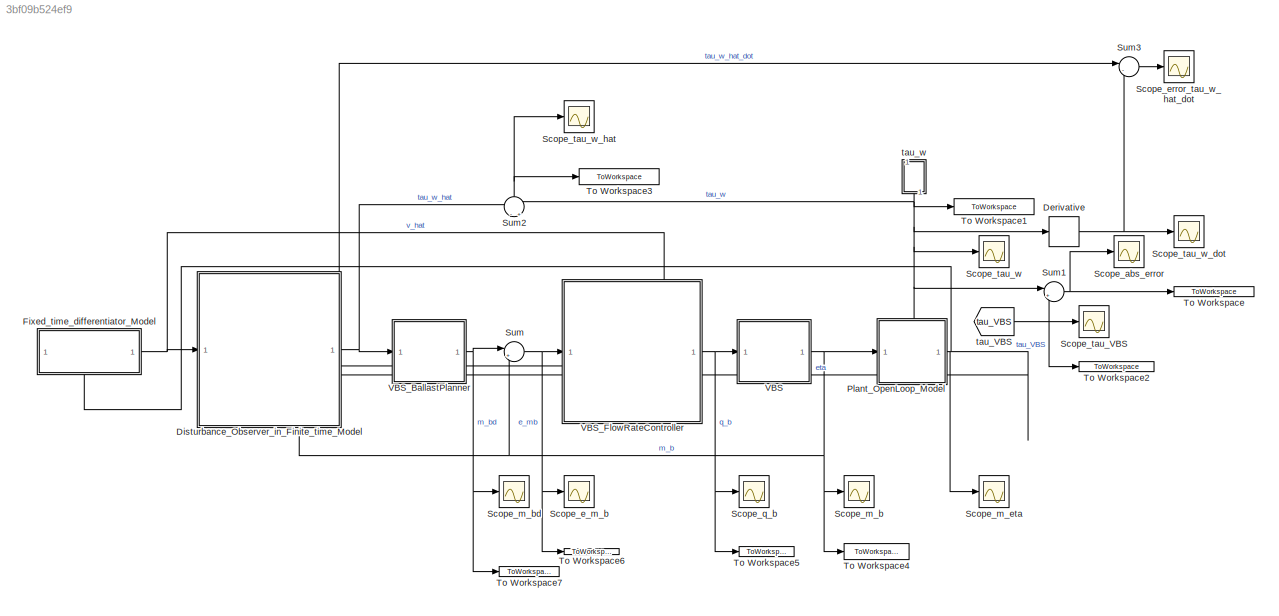
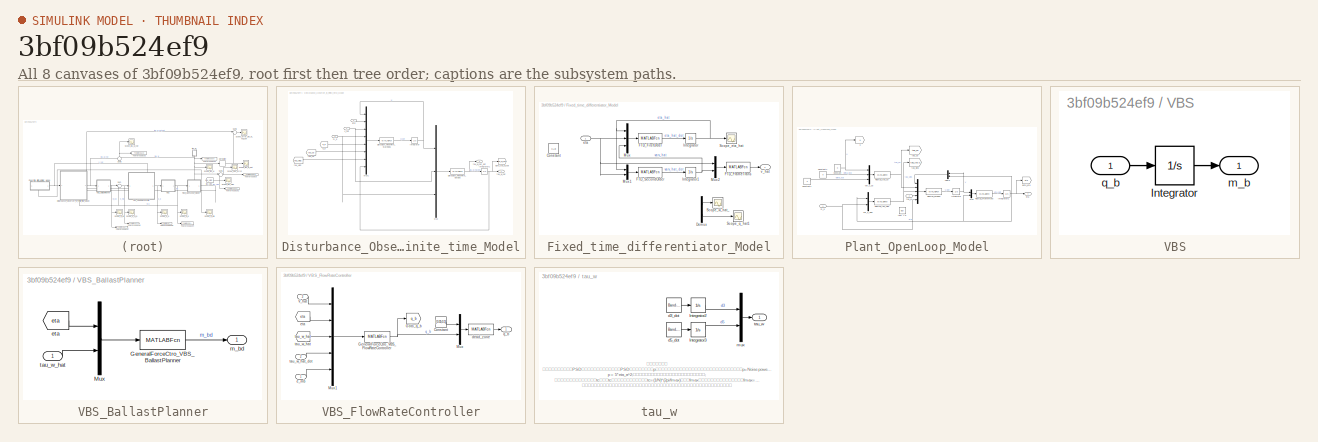
[diagram: thumbnail index - all 8 canvases of the model, root first then tree order]
MODEL slx_3bf09b524ef9
KIND model
CONFIG AbsTol = auto
CONFIG EnableMultiTasking = off
CONFIG FixedStep = 0.0001
CONFIG MaxStep = auto
CONFIG MinStep = auto
CONFIG RelTol = 1e-3
CONFIG SampleTimeConstraint = Unconstrained
CONFIG SolverName = FixedStepAuto
CONFIG StartTime = 0.0
CONFIG StopTime = 150
BLOCK [Derivative] Derivative
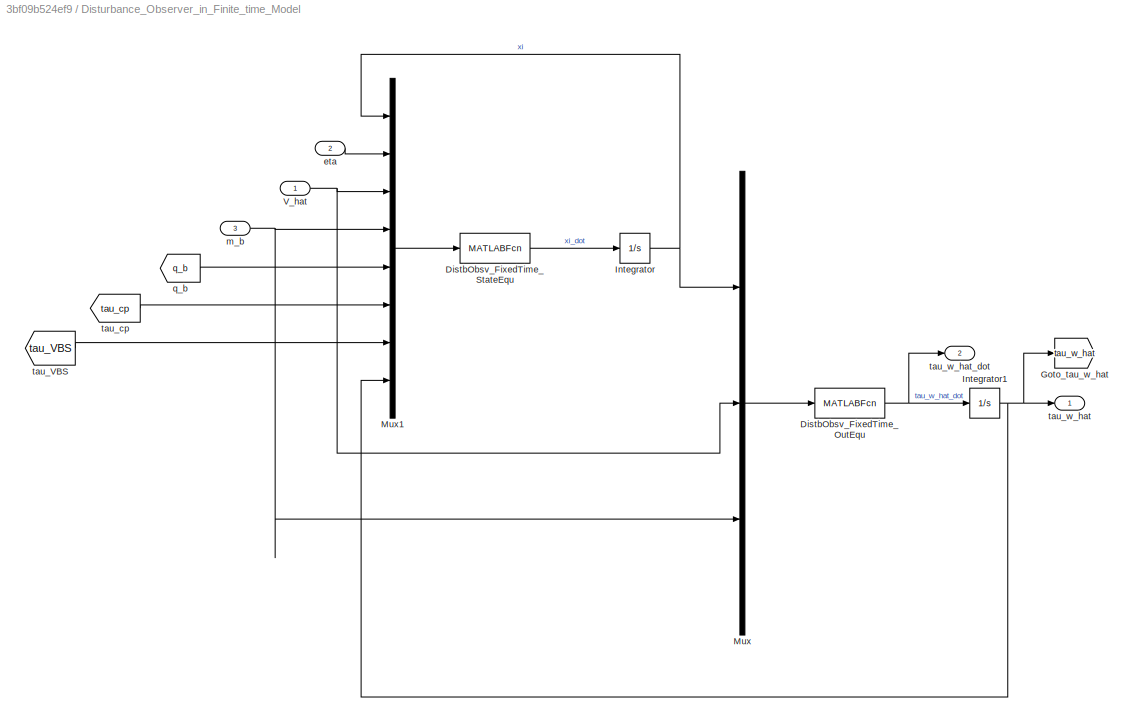
BLOCK [SubSystem] Disturbance_Observer_in_Finite_time_Model
  PortSchema = {"entries":[{"content":{"sides":[{"content":{"connectorIds":["In1"]},"type":"ConnectorPlacement.EquallySpacedRectSide","uuid":"977a3149-1921-48fe-b96a-a4ad28c91371"},{"content":{"connectorIds":["Out1"],"side":"RIGHT"},"type":"ConnectorPlacement.EquallySpacedRectSide","uuid":"fff94096-65c1-4681-8bdf-eed371b61c52"},{"content":{"connectorIds":["Out2"],"side":"TOP"},"type":"ConnectorPlacement.EquallyS...<+401ch>
BLOCK [MATLABFcn] Disturbance_Observer_in_Finite_time_Model/DistbObsv_FixedTime_OutEqu
  MATLABFcn = DistbObsv_FixedTime_OutEqu
  OutputDimensions = 2
  OutputSignalType = real
BLOCK [MATLABFcn] Disturbance_Observer_in_Finite_time_Model/DistbObsv_FixedTime_StateEqu
  MATLABFcn = DistbObsv_FixedTime_StateEqu
  OutputDimensions = 2
  OutputSignalType = real
BLOCK [Goto] Disturbance_Observer_in_Finite_time_Model/Goto_tau_w_hat
  GotoTag = tau_w_hat
  TagVisibility = global
BLOCK [Integrator] Disturbance_Observer_in_Finite_time_Model/Integrator
BLOCK [Integrator] Disturbance_Observer_in_Finite_time_Model/Integrator1
BLOCK [Mux] Disturbance_Observer_in_Finite_time_Model/Mux
  DisplayOption = bar
  Inputs = 3
BLOCK [Mux] Disturbance_Observer_in_Finite_time_Model/Mux1
  DisplayOption = bar
  Inputs = 8
BLOCK [Inport] Disturbance_Observer_in_Finite_time_Model/V_hat
BLOCK [Inport] Disturbance_Observer_in_Finite_time_Model/eta
  Port = 2
BLOCK [Inport] Disturbance_Observer_in_Finite_time_Model/m_b
  Port = 3
BLOCK [From] Disturbance_Observer_in_Finite_time_Model/q_b
  GotoTag = q_b
  TagVisibility = global
BLOCK [From] Disturbance_Observer_in_Finite_time_Model/tau_VBS
  GotoTag = tau_VBS
  TagVisibility = global
BLOCK [From] Disturbance_Observer_in_Finite_time_Model/tau_cp
  GotoTag = tau_cp
  TagVisibility = global
BLOCK [Outport] Disturbance_Observer_in_Finite_time_Model/tau_w_hat
BLOCK [Outport] Disturbance_Observer_in_Finite_time_Model/tau_w_hat_dot
  Port = 2
BLOCK [SubSystem] Fixed_time_differentiator_Model
  PortSchema = {"entries":[{"content":{"sides":[{"content":{},"type":"ConnectorPlacement.EquallySpacedRectSide","uuid":"509b689f-cae1-4523-9372-2499bd3b7d9d"},{"content":{"connectorIds":["Out1"],"side":"RIGHT"},"type":"ConnectorPlacement.EquallySpacedRectSide","uuid":"a1df743b-e6a9-4451-86f2-27990c18dc24"},{"content":{"side":"TOP"},"type":"ConnectorPlacement.EquallySpacedRectSide","uuid":"5149f091-ad88-4d80-a39f...<+349ch>
BLOCK [Constant] Fixed_time_differentiator_Model/Constant
  Value = [1,2]
BLOCK [Demux] Fixed_time_differentiator_Model/Demux
  Outputs = 2
BLOCK [MATLABFcn] Fixed_time_differentiator_Model/FTD_FirstOrder
  MATLABFcn = FTD_FirstOrder
  OutputDimensions = 2
BLOCK [MATLABFcn] Fixed_time_differentiator_Model/FTD_FrameTrans
  MATLABFcn = FTD_FrameTrans
BLOCK [MATLABFcn] Fixed_time_differentiator_Model/FTD_SecondOrder
  MATLABFcn = FTD_SecondOrder
  OutputDimensions = 2
BLOCK [Integrator] Fixed_time_differentiator_Model/Integrator
BLOCK [Integrator] Fixed_time_differentiator_Model/Integrator1
BLOCK [Mux] Fixed_time_differentiator_Model/Mux
  DisplayOption = bar
  Inputs = 3
BLOCK [Mux] Fixed_time_differentiator_Model/Mux1
  DisplayOption = bar
  Inputs = 2
BLOCK [Mux] Fixed_time_differentiator_Model/Mux2
  DisplayOption = bar
  Inputs = 2
BLOCK [Scope] Fixed_time_differentiator_Model/Scope_eta_hat
  Floating = off
  NumInputPorts = 1
  ScopeSpecificationString = Simulink.scopes.TimeScopeBlockCfg('CurrentConfiguration', extmgr.ConfigurationSet(extmgr.Configuration('Core','General UI',true),extmgr.Configuration('Core','Source UI',true),extmgr.Configuration('Sources','WiredSimulink',true,'DataLoggingVariableName','ScopeData1'),extmgr.Configuration('Visuals','Time Domain',true,'SerializedDisplays',{struct('MinYLimReal','-15051228326719683422998310475485230626...<+3556ch>
BLOCK [Scope] Fixed_time_differentiator_Model/Scope_q_hat1
  Floating = off
  NumInputPorts = 1
  ScopeSpecificationString = Simulink.scopes.TimeScopeBlockCfg('CurrentConfiguration', extmgr.ConfigurationSet(extmgr.Configuration('Core','General UI',true),extmgr.Configuration('Core','Source UI',true),extmgr.Configuration('Sources','WiredSimulink',true,'DataLoggingVariableName','ScopeData2'),extmgr.Configuration('Visuals','Time Domain',true,'SerializedDisplays',{struct('MinYLimReal','-1.1735','MaxYLimReal','10.38134','YLab...<+1401ch>
BLOCK [Scope] Fixed_time_differentiator_Model/Scope_w_hat_
  Floating = off
  NumInputPorts = 1
  ScopeSpecificationString = Simulink.scopes.TimeScopeBlockCfg('CurrentConfiguration', extmgr.ConfigurationSet(extmgr.Configuration('Core','General UI',true),extmgr.Configuration('Core','Source UI',true),extmgr.Configuration('Sources','WiredSimulink',true),extmgr.Configuration('Visuals','Time Domain',true,'SerializedDisplays',{struct('MinYLimReal','-16.18124','MaxYLimReal','-0.62236','YLabelReal','','MinYLimMag','0.00000','Ma...<+1365ch>
BLOCK [Inport] Fixed_time_differentiator_Model/eta
BLOCK [Outport] Fixed_time_differentiator_Model/v_hat
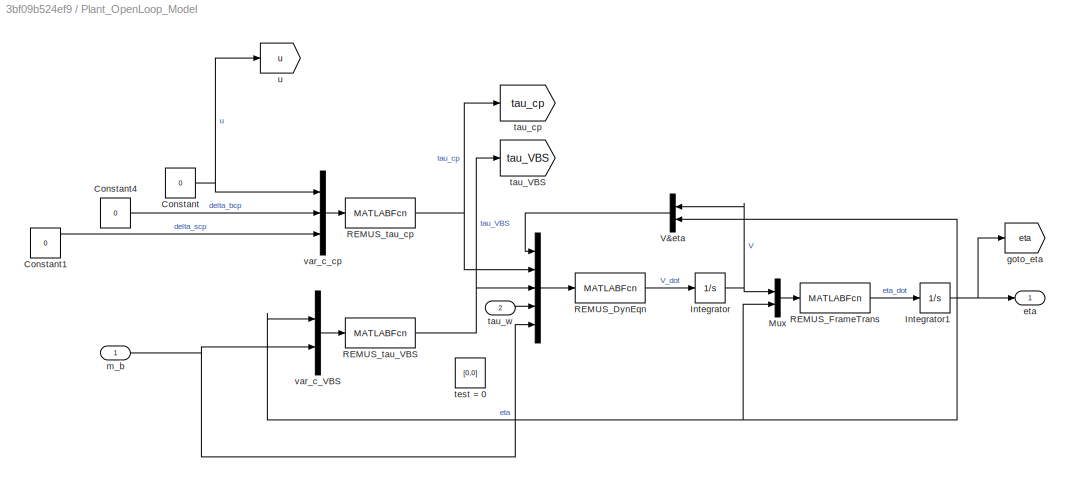
BLOCK [SubSystem] Plant_OpenLoop_Model
  PortSchema = {"entries":[{"content":{"sides":[{"content":{"connectorIds":["In1"]},"type":"ConnectorPlacement.EquallySpacedRectSide","uuid":"171ab365-2c9c-477f-ab94-6e1b535ce398"},{"content":{"connectorIds":["Out1"],"side":"RIGHT"},"type":"ConnectorPlacement.EquallySpacedRectSide","uuid":"68d15153-0085-4baf-9515-c294b6b9b8eb"},{"content":{"connectorIds":["In2"],"side":"TOP"},"type":"ConnectorPlacement.EquallySp...<+245ch>
BLOCK [Mux] Plant_OpenLoop_Model/ 
  DisplayOption = bar
  Inputs = 5
BLOCK [Constant] Plant_OpenLoop_Model/Constant
  Value = 0
BLOCK [Constant] Plant_OpenLoop_Model/Constant1
  Value = 0
BLOCK [Constant] Plant_OpenLoop_Model/Constant4
  Value = 0
BLOCK [Integrator] Plant_OpenLoop_Model/Integrator
BLOCK [Integrator] Plant_OpenLoop_Model/Integrator1
BLOCK [Mux] Plant_OpenLoop_Model/Mux
  DisplayOption = bar
  Inputs = 2
BLOCK [MATLABFcn] Plant_OpenLoop_Model/REMUS_DynEqn
  MATLABFcn = REMUS_DynEqn
  OutputDimensions = 2
BLOCK [MATLABFcn] Plant_OpenLoop_Model/REMUS_FrameTrans
  MATLABFcn = REMUS_FrameTrans
  OutputDimensions = 2
BLOCK [MATLABFcn] Plant_OpenLoop_Model/REMUS_tau_VBS
  MATLABFcn = REMUS_tau_VBS
  OutputDimensions = 2
  OutputSignalType = real
BLOCK [MATLABFcn] Plant_OpenLoop_Model/REMUS_tau_cp
  MATLABFcn = REMUS_tau_cp
  OutputDimensions = 2
  OutputSignalType = real
BLOCK [Mux] Plant_OpenLoop_Model/V&eta
  DisplayOption = bar
  Inputs = 2
  NameLocation = top
BLOCK [Outport] Plant_OpenLoop_Model/eta
BLOCK [Goto] Plant_OpenLoop_Model/goto_eta
  GotoTag = eta
  TagVisibility = global
BLOCK [Inport] Plant_OpenLoop_Model/m_b
BLOCK [Goto] Plant_OpenLoop_Model/tau_VBS
  GotoTag = tau_VBS
  TagVisibility = global
BLOCK [Goto] Plant_OpenLoop_Model/tau_cp
  GotoTag = tau_cp
  TagVisibility = global
BLOCK [Inport] Plant_OpenLoop_Model/tau_w
  Port = 2
BLOCK [Constant] Plant_OpenLoop_Model/test = 0
  Value = [0,0]
BLOCK [Goto] Plant_OpenLoop_Model/u
  GotoTag = u
  TagVisibility = global
BLOCK [Mux] Plant_OpenLoop_Model/var_c_VBS
  DisplayOption = bar
  Inputs = 2
BLOCK [Mux] Plant_OpenLoop_Model/var_c_cp
  DisplayOption = bar
  Inputs = 3
BLOCK [Scope] Scope_abs_error
  Floating = off
  NumInputPorts = 1
  ScopeSpecificationString = Simulink.scopes.TimeScopeBlockCfg('CurrentConfiguration', extmgr.ConfigurationSet(extmgr.Configuration('Core','General UI',true),extmgr.Configuration('Core','Source UI',true),extmgr.Configuration('Sources','WiredSimulink',true,'DataLoggingVariableName','ScopeData1'),extmgr.Configuration('Visuals','Time Domain',true,'SerializedDisplays',{struct('MinYLimReal','-2.10263','MaxYLimReal','2.36769','YLab...<+1447ch>
BLOCK [Scope] Scope_e_m_b
  Floating = off
  NumInputPorts = 1
  ScopeSpecificationString = Simulink.scopes.TimeScopeBlockCfg('CurrentConfiguration', extmgr.ConfigurationSet(extmgr.Configuration('Core','General UI',true),extmgr.Configuration('Core','Source UI',true),extmgr.Configuration('Sources','WiredSimulink',true,'DataLoggingVariableName','ScopeData4'),extmgr.Configuration('Visuals','Time Domain',true,'SerializedDisplays',{struct('MinYLimReal','-0.000000000000007','MaxYLimReal','0.00...<+1527ch>
BLOCK [Scope] Scope_error_tau_w_hat_dot
  Floating = off
  NumInputPorts = 1
  ScopeSpecificationString = Simulink.scopes.TimeScopeBlockCfg('CurrentConfiguration', extmgr.ConfigurationSet(extmgr.Configuration('Core','General UI',true),extmgr.Configuration('Core','Source UI',true),extmgr.Configuration('Sources','WiredSimulink',true,'DataLoggingVariableName','ScopeData2'),extmgr.Configuration('Visuals','Time Domain',true,'SerializedDisplays',{struct('MinYLimReal','-18.66143','MaxYLimReal','4.67716','YLa...<+1478ch>
BLOCK [Scope] Scope_m_b
  Floating = off
  NumInputPorts = 1
  ScopeSpecificationString = Simulink.scopes.TimeScopeBlockCfg('CurrentConfiguration', extmgr.ConfigurationSet(extmgr.Configuration('Core','General UI',true),extmgr.Configuration('Core','Source UI',true),extmgr.Configuration('Sources','WiredSimulink',true,'DataLoggingVariableName','ScopeData7'),extmgr.Configuration('Visuals','Time Domain',true,'SerializedDisplays',{struct('MinYLimReal','-0.26776','MaxYLimReal','1.08423','YLab...<+1420ch>
BLOCK [Scope] Scope_m_bd
  Floating = off
  NumInputPorts = 1
  ScopeSpecificationString = Simulink.scopes.TimeScopeBlockCfg('CurrentConfiguration', extmgr.ConfigurationSet(extmgr.Configuration('Core','General UI',true),extmgr.Configuration('Core','Source UI',true),extmgr.Configuration('Sources','WiredSimulink',true,'DataLoggingVariableName','ScopeData6'),extmgr.Configuration('Visuals','Time Domain',true,'SerializedDisplays',{struct('MinYLimReal','-0.26776','MaxYLimReal','1.08423','YLab...<+1422ch>
BLOCK [Scope] Scope_m_eta
  Floating = off
  NumInputPorts = 1
  ScopeSpecificationString = Simulink.scopes.TimeScopeBlockCfg('CurrentConfiguration', extmgr.ConfigurationSet(extmgr.Configuration('Core','General UI',true),extmgr.Configuration('Core','Source UI',true),extmgr.Configuration('Sources','WiredSimulink',true,'DataLoggingVariableName','ScopeData8'),extmgr.Configuration('Visuals','Time Domain',true,'SerializedDisplays',{struct('MinYLimReal','-0.00494','MaxYLimReal','0.02563','YLab...<+1445ch>
BLOCK [Scope] Scope_q_b
  Floating = off
  NumInputPorts = 1
  ScopeSpecificationString = Simulink.scopes.TimeScopeBlockCfg('CurrentConfiguration', extmgr.ConfigurationSet(extmgr.Configuration('Core','General UI',true),extmgr.Configuration('Core','Source UI',true),extmgr.Configuration('Sources','WiredSimulink',true,'DataLoggingVariableName','ScopeData5'),extmgr.Configuration('Visuals','Time Domain',true,'SerializedDisplays',{struct('MinYLimReal','-0.58862','MaxYLimReal','0.58808','YLab...<+1445ch>
BLOCK [Scope] Scope_tau_VBS
  Floating = off
  NumInputPorts = 1
  ScopeSpecificationString = Simulink.scopes.TimeScopeBlockCfg('CurrentConfiguration', extmgr.ConfigurationSet(extmgr.Configuration('Core','General UI',true),extmgr.Configuration('Core','Source UI',true),extmgr.Configuration('Sources','WiredSimulink',true,'DataLoggingVariableName','ScopeData2'),extmgr.Configuration('Visuals','Time Domain',true,'SerializedDisplays',{struct('MinYLimReal','-5.69197','MaxYLimReal','19.43248','YLa...<+1457ch>
BLOCK [Scope] Scope_tau_w
  Floating = off
  NumInputPorts = 1
  ScopeSpecificationString = Simulink.scopes.TimeScopeBlockCfg('CurrentConfiguration', extmgr.ConfigurationSet(extmgr.Configuration('Core','General UI',true),extmgr.Configuration('Core','Source UI',true),extmgr.Configuration('Sources','WiredSimulink',true,'DataLoggingVariableName','ScopeData3'),extmgr.Configuration('Visuals','Time Domain',true,'SerializedDisplays',{struct('MinYLimReal','-18.66143','MaxYLimReal','4.67716','YLa...<+1478ch>
BLOCK [Scope] Scope_tau_w_dot
  Floating = off
  NumInputPorts = 1
  ScopeSpecificationString = Simulink.scopes.TimeScopeBlockCfg('CurrentConfiguration', extmgr.ConfigurationSet(extmgr.Configuration('Core','General UI',true),extmgr.Configuration('Core','Source UI',true),extmgr.Configuration('Sources','WiredSimulink',true,'DataLoggingVariableName','ScopeData1'),extmgr.Configuration('Visuals','Time Domain',true,'SerializedDisplays',{struct('MinYLimReal','-18.66143','MaxYLimReal','4.67716','YLa...<+1478ch>
BLOCK [Scope] Scope_tau_w_hat
  Floating = off
  NumInputPorts = 1
  ScopeSpecificationString = Simulink.scopes.TimeScopeBlockCfg('CurrentConfiguration', extmgr.ConfigurationSet(extmgr.Configuration('Core','General UI',true),extmgr.Configuration('Core','Source UI',true),extmgr.Configuration('Sources','WiredSimulink',true,'DataLoggingVariableName','ScopeData1'),extmgr.Configuration('Visuals','Time Domain',true,'SerializedDisplays',{struct('MinYLimReal','-3.57417','MaxYLimReal','3.36642','YLab...<+1472ch>
BLOCK [Sum] Sum
  Inputs = |+-
BLOCK [Sum] Sum1
  Inputs = |++
BLOCK [Sum] Sum2
  Inputs = -|+
  NameLocation = right
BLOCK [Sum] Sum3
  Inputs = |-+
BLOCK [ToWorkspace] To Workspace
  FixptAsFi = on
  MaxDataPoints = inf
  SampleTime = -1
  SaveFormat = Timeseries
  VariableName = error_abs_tau_w_VBS
BLOCK [ToWorkspace] To Workspace1
  FixptAsFi = on
  MaxDataPoints = inf
  SampleTime = -1
  SaveFormat = Timeseries
  VariableName = tau_w
BLOCK [ToWorkspace] To Workspace2
  FixptAsFi = on
  MaxDataPoints = inf
  SampleTime = -1
  SaveFormat = Timeseries
  VariableName = tau_VBS
BLOCK [ToWorkspace] To Workspace3
  FixptAsFi = on
  MaxDataPoints = inf
  SampleTime = -1
  SaveFormat = Timeseries
  VariableName = error_abs_tau_w_hat
BLOCK [ToWorkspace] To Workspace4
  FixptAsFi = on
  MaxDataPoints = inf
  SampleTime = -1
  SaveFormat = Timeseries
  VariableName = m_b
BLOCK [ToWorkspace] To Workspace5
  FixptAsFi = on
  MaxDataPoints = inf
  SampleTime = -1
  SaveFormat = Timeseries
  VariableName = q_b
BLOCK [ToWorkspace] To Workspace6
  FixptAsFi = on
  MaxDataPoints = inf
  SampleTime = -1
  SaveFormat = Timeseries
  VariableName = e_m_b
BLOCK [ToWorkspace] To Workspace7
  FixptAsFi = on
  MaxDataPoints = inf
  SampleTime = -1
  SaveFormat = Timeseries
  VariableName = m_bd
BLOCK [SubSystem] VBS
BLOCK [Integrator] VBS/Integrator
BLOCK [Outport] VBS/m_b
BLOCK [Inport] VBS/q_b
BLOCK [SubSystem] VBS_BallastPlanner
BLOCK [MATLABFcn] VBS_BallastPlanner/GeneralForceCtro_VBS_BallastPlanner
  MATLABFcn = GeneralForceCtrl_VBS_BallastPlanner
  OutputDimensions = 2
  OutputSignalType = real
BLOCK [Mux] VBS_BallastPlanner/Mux
  DisplayOption = bar
  Inputs = 2
BLOCK [From] VBS_BallastPlanner/eta
  GotoTag = eta
  TagVisibility = global
BLOCK [Outport] VBS_BallastPlanner/m_bd
BLOCK [Inport] VBS_BallastPlanner/tau_w_hat
BLOCK [SubSystem] VBS_FlowRateController
  PortSchema = {"entries":[{"content":{"sides":[{"content":{"connectorIds":["In1"]},"type":"ConnectorPlacement.EquallySpacedRectSide","uuid":"977a3149-1921-48fe-b96a-a4ad28c91371"},{"content":{"connectorIds":["Out1"],"side":"RIGHT"},"type":"ConnectorPlacement.EquallySpacedRectSide","uuid":"fff94096-65c1-4681-8bdf-eed371b61c52"},{"content":{"connectorIds":["In2","In3"],"side":"TOP"},"type":"ConnectorPlacement.Equ...<+251ch>
BLOCK [Constant] VBS_FlowRateController/Constant
  Value = [0.05;0.5]
BLOCK [MATLABFcn] VBS_FlowRateController/GeneralForceCtro_VBS_FlowRateController
  MATLABFcn = GeneralForceCtrl_VBS_FlowRateController
  OutputDimensions = 2
  OutputSignalType = real
BLOCK [Goto] VBS_FlowRateController/Goto_q_b
  GotoTag = q_b
  TagVisibility = global
BLOCK [Mux] VBS_FlowRateController/Mux
  DisplayOption = bar
  Inputs = 2
BLOCK [Mux] VBS_FlowRateController/Mux1
  DisplayOption = bar
  Inputs = 5
BLOCK [Inport] VBS_FlowRateController/V_hat
  Port = 3
BLOCK [MATLABFcn] VBS_FlowRateController/dead_zone
  MATLABFcn = PublicFunc_dead_zone
  OutputDimensions = 2
  OutputSignalType = real
BLOCK [Inport] VBS_FlowRateController/e_mb
BLOCK [From] VBS_FlowRateController/eta
  GotoTag = eta
  TagVisibility = global
BLOCK [Outport] VBS_FlowRateController/q_b
BLOCK [From] VBS_FlowRateController/tau_w_hat
  GotoTag = tau_w_hat
  TagVisibility = global
BLOCK [Inport] VBS_FlowRateController/tau_w_hat_dot
  Port = 2
BLOCK [From] tau_VBS
  GotoTag = tau_VBS
  TagVisibility = global
BLOCK [SubSystem] tau_w
  NameLocation = left
BLOCK [Integrator] tau_w/Integrator2
BLOCK [Integrator] tau_w/Integrator3
BLOCK [Reference] tau_w/d3_dot  REF=simulink/Sources/Band-Limited
White Noise
  SourceBlock = simulink/Sources/Band-Limited\nWhite Noise
  SourceType = Band-Limited White Noise.
BLOCK [Reference] tau_w/d5_dot  REF=simulink/Sources/Band-Limited
White Noise
  SourceBlock = simulink/Sources/Band-Limited\nWhite Noise
  SourceType = Band-Limited White Noise.
BLOCK [Mux] tau_w/mux
  DisplayOption = bar
  Inputs = 2
BLOCK [Outport] tau_w/tau_w
  SignalType = real
ANNOTATION tau_w: 高斯白噪声模块 噪声功率：指定白噪声PSD（能量谱密度）的高度，这个PSD并不是噪声的能量p（并且这个能量的分布是常值），它与能量之间有一个转换关系，p=Noise power/tc，tc就在下面；默认值为0.1。S(w) = 0.5*eta_a^2; p = 5*eta_a^2;也就是说此处的噪声能量相当于信号幅值平方的平均值; 采样时间：指定噪声的相关时间tc，这个tc与系统的带宽之间的关系是tc=(1/N)*(2pi/fmax)，其中fmax是系统的带宽（实际上是角频率，fmax=2*pi*f，这个f才是我们常使用的频率Hz），N可以看成是采样率与系统频率的倍数关系（文档中推荐使用100），即采样率=N*系统频率，这和采样定理一致；默认值是0.1。 种子：这个参数是用来指定随机数生成器的初始值的，即种子，指定随机数生成器的起始种子。相当于不同相位。
NET Derivative:1 -> Scope_tau_w_dot:1, Sum3:2
NET Disturbance_Observer_in_Finite_time_Model/DistbObsv_FixedTime_OutEqu:1 -> Disturbance_Observer_in_Finite_time_Model/Integrator1:1, Disturbance_Observer_in_Finite_time_Model/tau_w_hat_dot:1
LINE Disturbance_Observer_in_Finite_time_Model/DistbObsv_FixedTime_StateEqu:1 -> Disturbance_Observer_in_Finite_time_Model/Integrator:1
NET Disturbance_Observer_in_Finite_time_Model/Integrator1:1 -> Disturbance_Observer_in_Finite_time_Model/Goto_tau_w_hat:1, Disturbance_Observer_in_Finite_time_Model/Mux1:8, Disturbance_Observer_in_Finite_time_Model/tau_w_hat:1
NET Disturbance_Observer_in_Finite_time_Model/Integrator:1 -> Disturbance_Observer_in_Finite_time_Model/Mux1:1, Disturbance_Observer_in_Finite_time_Model/Mux:1
LINE Disturbance_Observer_in_Finite_time_Model/Mux1:1 -> Disturbance_Observer_in_Finite_time_Model/DistbObsv_FixedTime_StateEqu:1
LINE Disturbance_Observer_in_Finite_time_Model/Mux:1 -> Disturbance_Observer_in_Finite_time_Model/DistbObsv_FixedTime_OutEqu:1
NET Disturbance_Observer_in_Finite_time_Model/V_hat:1 -> Disturbance_Observer_in_Finite_time_Model/Mux1:3, Disturbance_Observer_in_Finite_time_Model/Mux:2
LINE Disturbance_Observer_in_Finite_time_Model/eta:1 -> Disturbance_Observer_in_Finite_time_Model/Mux1:2
NET Disturbance_Observer_in_Finite_time_Model/m_b:1 -> Disturbance_Observer_in_Finite_time_Model/Mux1:4, Disturbance_Observer_in_Finite_time_Model/Mux:3
LINE Disturbance_Observer_in_Finite_time_Model/q_b:1 -> Disturbance_Observer_in_Finite_time_Model/Mux1:5
LINE Disturbance_Observer_in_Finite_time_Model/tau_VBS:1 -> Disturbance_Observer_in_Finite_time_Model/Mux1:7
LINE Disturbance_Observer_in_Finite_time_Model/tau_cp:1 -> Disturbance_Observer_in_Finite_time_Model/Mux1:6
NET Disturbance_Observer_in_Finite_time_Model:1 -> Sum2:1, VBS_BallastPlanner:1
NET Disturbance_Observer_in_Finite_time_Model:2 -> Sum3:1, VBS_FlowRateController:2
LINE Fixed_time_differentiator_Model/Demux:1 -> Fixed_time_differentiator_Model/Scope_w_hat_:1
LINE Fixed_time_differentiator_Model/Demux:2 -> Fixed_time_differentiator_Model/Scope_q_hat1:1
LINE Fixed_time_differentiator_Model/FTD_FirstOrder:1 -> Fixed_time_differentiator_Model/Integrator:1
LINE Fixed_time_differentiator_Model/FTD_FrameTrans:1 -> Fixed_time_differentiator_Model/v_hat:1
LINE Fixed_time_differentiator_Model/FTD_SecondOrder:1 -> Fixed_time_differentiator_Model/Integrator1:1
NET Fixed_time_differentiator_Model/Integrator1:1 -> Fixed_time_differentiator_Model/Mux2:2, Fixed_time_differentiator_Model/Mux:3
NET Fixed_time_differentiator_Model/Integrator:1 -> Fixed_time_differentiator_Model/Mux1:1, Fixed_time_differentiator_Model/Mux:1, Fixed_time_differentiator_Model/Scope_eta_hat:1
LINE Fixed_time_differentiator_Model/Mux1:1 -> Fixed_time_differentiator_Model/FTD_SecondOrder:1
LINE Fixed_time_differentiator_Model/Mux2:1 -> Fixed_time_differentiator_Model/FTD_FrameTrans:1
LINE Fixed_time_differentiator_Model/Mux:1 -> Fixed_time_differentiator_Model/FTD_FirstOrder:1
NET Fixed_time_differentiator_Model/eta:1 -> Fixed_time_differentiator_Model/Mux1:2, Fixed_time_differentiator_Model/Mux2:1, Fixed_time_differentiator_Model/Mux:2
NET Fixed_time_differentiator_Model:1 -> Disturbance_Observer_in_Finite_time_Model:1, VBS_FlowRateController:3
LINE Plant_OpenLoop_Model/ :1 -> Plant_OpenLoop_Model/REMUS_DynEqn:1
LINE Plant_OpenLoop_Model/Constant1:1 -> Plant_OpenLoop_Model/var_c_cp:3
LINE Plant_OpenLoop_Model/Constant4:1 -> Plant_OpenLoop_Model/var_c_cp:2
NET Plant_OpenLoop_Model/Constant:1 -> Plant_OpenLoop_Model/u:1, Plant_OpenLoop_Model/var_c_cp:1
NET Plant_OpenLoop_Model/Integrator1:1 -> Plant_OpenLoop_Model/Mux:2, Plant_OpenLoop_Model/V&eta:2, Plant_OpenLoop_Model/eta:1, Plant_OpenLoop_Model/goto_eta:1, Plant_OpenLoop_Model/var_c_VBS:1
NET Plant_OpenLoop_Model/Integrator:1 -> Plant_OpenLoop_Model/Mux:1, Plant_OpenLoop_Model/V&eta:1
LINE Plant_OpenLoop_Model/Mux:1 -> Plant_OpenLoop_Model/REMUS_FrameTrans:1
LINE Plant_OpenLoop_Model/REMUS_DynEqn:1 -> Plant_OpenLoop_Model/Integrator:1
LINE Plant_OpenLoop_Model/REMUS_FrameTrans:1 -> Plant_OpenLoop_Model/Integrator1:1
NET Plant_OpenLoop_Model/REMUS_tau_VBS:1 -> Plant_OpenLoop_Model/ :3, Plant_OpenLoop_Model/tau_VBS:1
NET Plant_OpenLoop_Model/REMUS_tau_cp:1 -> Plant_OpenLoop_Model/ :2, Plant_OpenLoop_Model/tau_cp:1
LINE Plant_OpenLoop_Model/V&eta:1 -> Plant_OpenLoop_Model/ :1
NET Plant_OpenLoop_Model/m_b:1 -> Plant_OpenLoop_Model/ :5, Plant_OpenLoop_Model/var_c_VBS:2
LINE Plant_OpenLoop_Model/tau_w:1 -> Plant_OpenLoop_Model/ :4
LINE Plant_OpenLoop_Model/var_c_VBS:1 -> Plant_OpenLoop_Model/REMUS_tau_VBS:1
LINE Plant_OpenLoop_Model/var_c_cp:1 -> Plant_OpenLoop_Model/REMUS_tau_cp:1
NET Plant_OpenLoop_Model:1 -> Disturbance_Observer_in_Finite_time_Model:2, Fixed_time_differentiator_Model:1, Scope_m_eta:1
NET Sum1:1 -> Scope_abs_error:1, To Workspace:1
NET Sum2:1 -> Scope_tau_w_hat:1, To Workspace3:1
LINE Sum3:1 -> Scope_error_tau_w_hat_dot:1
NET Sum:1 -> Scope_e_m_b:1, To Workspace6:1, VBS_FlowRateController:1
LINE VBS/Integrator:1 -> VBS/m_b:1
LINE VBS/q_b:1 -> VBS/Integrator:1
NET VBS:1 -> Disturbance_Observer_in_Finite_time_Model:3, Plant_OpenLoop_Model:1, Scope_m_b:1, Sum:2, To Workspace4:1
LINE VBS_BallastPlanner/GeneralForceCtro_VBS_BallastPlanner:1 -> VBS_BallastPlanner/m_bd:1
LINE VBS_BallastPlanner/Mux:1 -> VBS_BallastPlanner/GeneralForceCtro_VBS_BallastPlanner:1
LINE VBS_BallastPlanner/eta:1 -> VBS_BallastPlanner/Mux:1
LINE VBS_BallastPlanner/tau_w_hat:1 -> VBS_BallastPlanner/Mux:2
NET VBS_BallastPlanner:1 -> Scope_m_bd:1, Sum:1, To Workspace7:1
LINE VBS_FlowRateController/Constant:1 -> VBS_FlowRateController/Mux:1
NET VBS_FlowRateController/GeneralForceCtro_VBS_FlowRateController:1 -> VBS_FlowRateController/Goto_q_b:1, VBS_FlowRateController/Mux:2
LINE VBS_FlowRateController/Mux1:1 -> VBS_FlowRateController/GeneralForceCtro_VBS_FlowRateController:1
LINE VBS_FlowRateController/Mux:1 -> VBS_FlowRateController/dead_zone:1
LINE VBS_FlowRateController/V_hat:1 -> VBS_FlowRateController/Mux1:1
LINE VBS_FlowRateController/dead_zone:1 -> VBS_FlowRateController/q_b:1
LINE VBS_FlowRateController/e_mb:1 -> VBS_FlowRateController/Mux1:5
LINE VBS_FlowRateController/eta:1 -> VBS_FlowRateController/Mux1:2
LINE VBS_FlowRateController/tau_w_hat:1 -> VBS_FlowRateController/Mux1:3
LINE VBS_FlowRateController/tau_w_hat_dot:1 -> VBS_FlowRateController/Mux1:4
NET VBS_FlowRateController:1 -> Scope_q_b:1, To Workspace5:1, VBS:1
NET tau_VBS:1 -> Scope_tau_VBS:1, Sum1:2, To Workspace2:1
LINE tau_w/Integrator2:1 -> tau_w/mux:1
LINE tau_w/Integrator3:1 -> tau_w/mux:2
LINE tau_w/d3_dot:1 -> tau_w/Integrator2:1
LINE tau_w/d5_dot:1 -> tau_w/Integrator3:1
LINE tau_w/mux:1 -> tau_w/tau_w:1
NET tau_w:1 -> Derivative:1, Plant_OpenLoop_Model:2, Scope_tau_w:1, Sum1:1, Sum2:2, To Workspace1:1
note: NET lines group one-source signal fan-out (src -> all destinations, sorted); 1:1 wires keep LINE
